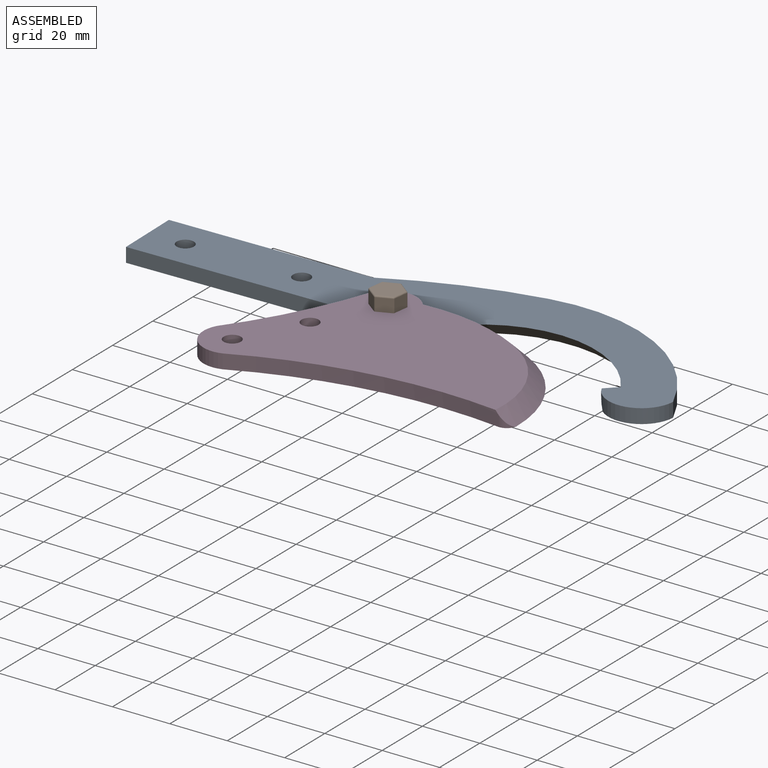
[diagram: assembled view]
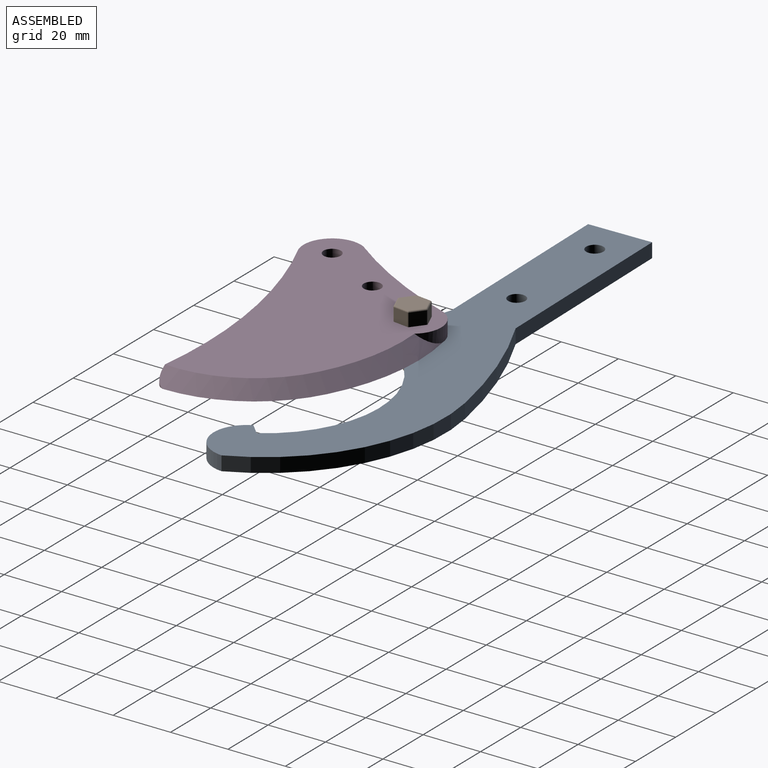
[diagram: assembled view, second angle]
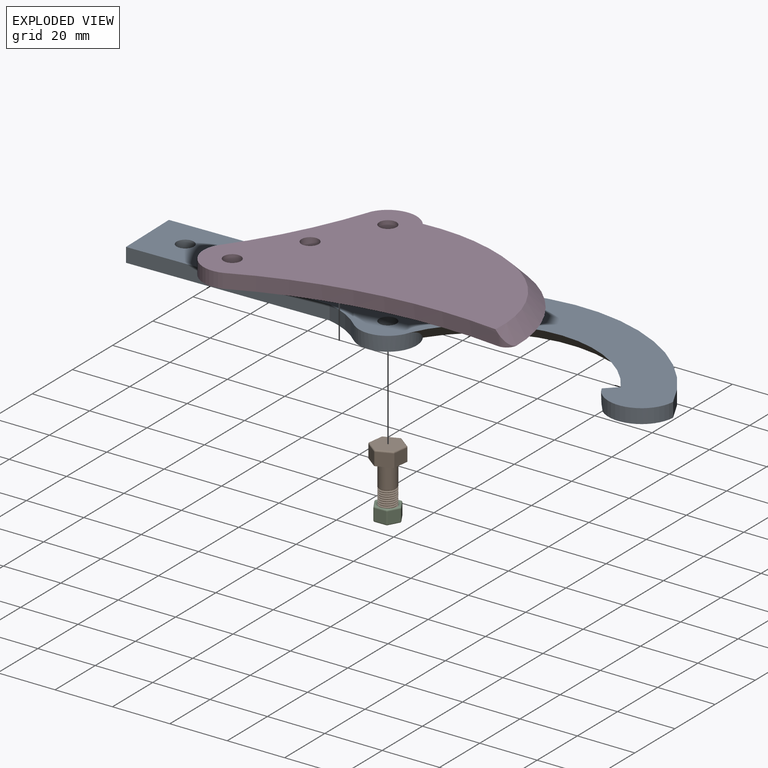
[diagram: exploded view]
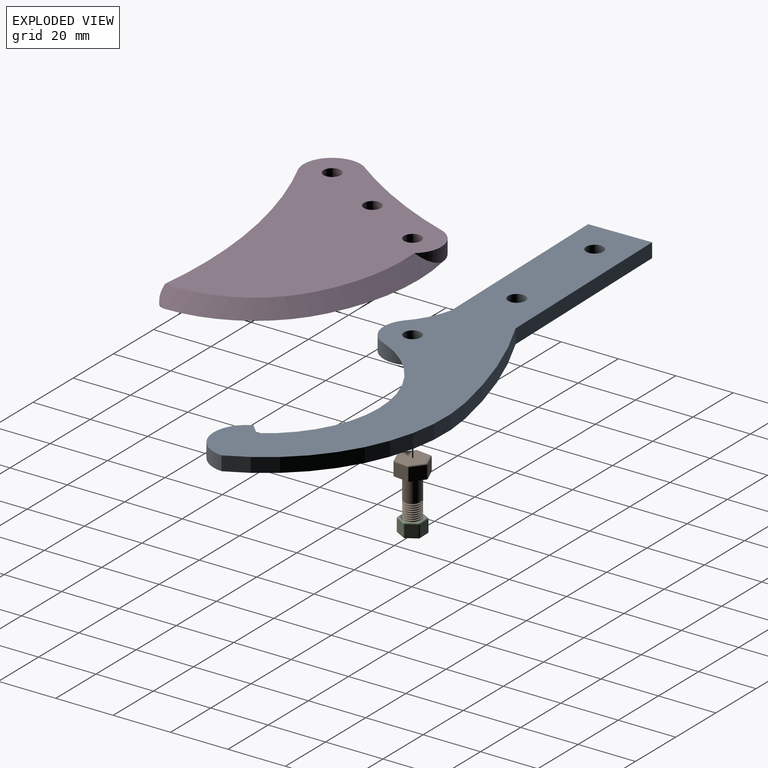
[diagram: exploded view, second angle]
ASSEMBLY  parts=4 mates=3
PART A: 15 faces, bbox 188.1x49.5x5.1 mm
  f0: cylinder r=11.54mm len=22mm, axis (0,0,-1), area 139mm2, adj f1,f11,f12,f14
  f1: cylinder r=62.7mm len=68.09mm, axis (0,0,-1), area 420.9mm2, adj f0,f2,f11,f12
  f2: cylinder r=175.93mm len=49.91mm, axis (0,0,-1), area 263.1mm2, adj f1,f3,f11,f12
  f3: plane 70x5mm, normal (0,1,0), area 350mm2, adj f2,f4,f11,f12
  f4: plane 22x5mm, normal (-1,0,0), area 110mm2, adj f3,f5,f11,f12
  f5: plane 70x5mm, normal (0,-1,0), area 350mm2, adj f4,f6,f11,f12
  f6: cylinder r=29.25mm len=13.41mm, axis (0,0,-1), area 77.8mm2, adj f5,f7,f11,f12
  f7: cylinder r=10mm len=16.59mm, axis (0,0,-1), area 125.2mm2, adj f6,f11,f12,f13
  f8: cylinder r=3mm len=6mm, axis (0,0,-1), area 94.2mm2, adj f11,f12
  f9: cylinder r=3mm len=6mm, axis (0,0,-1), area 94.2mm2, adj f11,f12
  f10: cylinder r=3mm len=6mm, axis (0,0,-1), area 94.2mm2, adj f11,f12
  f11: plane 188x49.41mm, normal (0,0,1), area 4442.4mm2, adj f0,f1,f2,f3,f4,f5,f6,f7
  f12: plane 188x49.41mm, normal (0,0,-1), area 3957.2mm2, adj f0,f1,f2,f3,f4,f5,f6,f7
  f13: cone r=40mm half-angle=45deg, axis (0,0,-1), area 630.3mm2, adj f7,f11,f12,f14
  f14: plane 10.27x7.86mm, normal (-0.49,0.51,-0.71), area 55.8mm2, adj f0,f11,f12,f13
PART B: 44 faces, bbox 11.4x10x21.2 mm
  f0: cone r=2.5mm half-angle=45deg, axis (0,0,1), area 5.8mm2, adj f1,f39,f41,f42
  f1: cone r=2.5mm half-angle=45deg, axis (0,0,1), area 1.1mm2, adj f0,f28,f41,f43
  f2: plane 4.5x4.5mm, normal (0.87,-0.5,0), area 23.4mm2, adj f9,f10,f13,f22
  f3: plane 4.5x4.5mm, normal (0.87,0.5,0), area 23.4mm2, adj f9,f13,f14,f18
  f4: plane 5.2x4.5mm, normal (0,1,0), area 23.4mm2, adj f9,f14,f15,f17
  f5: plane 4.5x4.5mm, normal (-0.87,0.5,0), area 23.4mm2, adj f9,f12,f15,f21
  f6: plane 4.5x4.5mm, normal (-0.87,-0.5,0), area 23.4mm2, adj f9,f11,f12,f25
  f7: plane 5.2x4.5mm, normal (0,-1,0), area 23.4mm2, adj f9,f10,f11,f26
  f8: plane 10.39x9mm, normal (0,0,1), area 70.1mm2, adj f17,f18,f21,f22,f25,f26
  f9: plane 11.39x10mm, normal (0,0,-1), area 58.2mm2, adj f2,f3,f4,f5,f6,f7,f10,f11
  f10: cylinder r=0.5mm len=4.5mm, axis (0,0,-1), area 2.4mm2, adj f2,f7,f9,f24
  f11: cylinder r=0.5mm len=4.5mm, axis (0,0,-1), area 2.4mm2, adj f6,f7,f9,f27
  f12: cylinder r=0.5mm len=4.5mm, axis (0,0,-1), area 2.4mm2, adj f5,f6,f9,f23
  f13: cylinder r=0.5mm len=4.5mm, axis (0,0,-1), area 2.4mm2, adj f2,f3,f9,f20
  f14: cylinder r=0.5mm len=4.5mm, axis (0,0,-1), area 2.4mm2, adj f3,f4,f9,f16
  f15: cylinder r=0.5mm len=4.5mm, axis (0,0,-1), area 2.4mm2, adj f4,f5,f9,f19
  f16: sphere r=0.5mm, area 0.3mm2, adj f14,f17,f18
  f17: cylinder r=0.5mm len=5.2mm, axis (1,0,0), area 4.1mm2, adj f4,f8,f16,f19
  f18: cylinder r=0.5mm len=4.75mm, axis (0.5,-0.87,0), area 4.1mm2, adj f3,f8,f16,f20
  f19: sphere r=0.5mm, area 0.3mm2, adj f15,f17,f21
  f20: sphere r=0.5mm, area 0.4mm2, adj f13,f18,f22
  f21: cylinder r=0.5mm len=4.75mm, axis (0.5,0.87,0), area 4.1mm2, adj f5,f8,f19,f23
  f22: cylinder r=0.5mm len=4.75mm, axis (-0.5,-0.87,0), area 4.1mm2, adj f2,f8,f20,f24
  f23: sphere r=0.5mm, area 0.4mm2, adj f12,f21,f25
  f24: sphere r=0.5mm, area 0.3mm2, adj f10,f22,f26
  f25: cylinder r=0.5mm len=4.75mm, axis (-0.5,0.87,0), area 4.1mm2, adj f6,f8,f23,f27
  f26: cylinder r=0.5mm len=5.2mm, axis (-1,0,0), area 4.1mm2, adj f7,f8,f24,f27
  f27: sphere r=0.5mm, area 0.3mm2, adj f11,f25,f26
  f28: cylinder r=3mm len=6mm, axis (0,0,1), area 1.6mm2, adj f1,f29,f41,f43
  f29: cylinder r=3mm len=6mm, axis (0,0,1), area 1.7mm2, adj f28,f30,f41,f43
  f30: cylinder r=3mm len=6mm, axis (0,0,1), area 1.6mm2, adj f29,f31,f41,f43
  f31: cylinder r=3mm len=6mm, axis (0,0,1), area 1.6mm2, adj f30,f32,f41,f43
  f32: cylinder r=3mm len=6mm, axis (0,0,1), area 1.6mm2, adj f31,f33,f41,f43
  f33: cylinder r=3mm len=6mm, axis (0,0,1), area 1.6mm2, adj f32,f34,f41,f43
  f34: cylinder r=3mm len=6mm, axis (0,0,1), area 1.6mm2, adj f33,f35,f41,f43
  f35: cylinder r=3mm len=6mm, axis (0,0,1), area 1.6mm2, adj f34,f36,f41,f43
  f36: cylinder r=3mm len=6mm, axis (0,0,1), area 1.6mm2, adj f35,f37,f41,f43
  f37: cylinder r=3mm len=6mm, axis (0,0,1), area 1.6mm2, adj f36,f38,f41,f43
  f38: cylinder r=3mm len=8.59mm, axis (0,0,1), area 155.3mm2, adj f9,f37,f40,f41,f43
  f39: plane 5x5mm, normal (0,0,-1), area 19.6mm2, adj f0
  f40: plane 0.61x0.34mm, normal (0.43,0.9,0), area 0.1mm2, adj f38,f41,f42,f43
  f41: bspline ~7.87x6.93mm, area 80.5mm2, adj f0,f1,f28,f29,f30,f31,f32,f33
  f42: cylinder r=2.62mm len=7.77mm, axis (0,0,1), area 16.5mm2, adj f0,f40,f41,f43
  f43: bspline ~7.99x6mm, area 84.8mm2, adj f1,f28,f29,f30,f31,f32,f33,f34
PART C: 57 faces, bbox 9.1x8x5 mm
  f0: plane 3.03x1.75mm, normal (0,0,1), area 0.7mm2, adj f33,f43,f50
  f1: plane 3.03x1.75mm, normal (0,0,1), area 0.7mm2, adj f24,f33,f50
  f2: plane 3.5x1.01mm, normal (0,0,1), area 0.7mm2, adj f24,f34,f50
  f3: plane 3.03x1.75mm, normal (0,0,1), area 0.7mm2, adj f34,f44,f50
  f4: plane 3.03x1.75mm, normal (0,0,1), area 0.7mm2, adj f44,f48,f50
  f5: plane 3.03x1.75mm, normal (0,0,-1), area 0.7mm2, adj f36,f37,f49
  f6: plane 3.03x1.75mm, normal (0,0,-1), area 0.7mm2, adj f26,f36,f49
  f7: plane 3.5x1.01mm, normal (0,0,-1), area 0.7mm2, adj f19,f26,f49
  f8: plane 3.03x1.75mm, normal (0,0,-1), area 0.7mm2, adj f19,f22,f49
  f9: plane 3.03x1.75mm, normal (0,0,-1), area 0.7mm2, adj f22,f31,f49
  f10: plane 3.5x1.01mm, normal (0,0,1), area 0.7mm2, adj f43,f48,f50
  f11: plane 3.5x1.01mm, normal (0,0,-1), area 0.7mm2, adj f31,f37,f49
  f12: plane 4x3.5mm, normal (0.87,-0.5,0), area 16.2mm2, adj f31,f32,f42,f43
  f13: plane 4x3.5mm, normal (0.87,0.5,0), area 16.2mm2, adj f37,f42,f45,f48
  f14: plane 4.04x4mm, normal (0,1,0), area 16.2mm2, adj f35,f36,f44,f45
  f15: plane 4x3.5mm, normal (-0.87,0.5,0), area 16.2mm2, adj f25,f26,f34,f35
  f16: plane 4x3.5mm, normal (-0.87,-0.5,0), area 16.2mm2, adj f19,f23,f24,f25
  f17: plane 4.04x4mm, normal (0,-1,0), area 16.2mm2, adj f22,f23,f32,f33
  f18: cylinder r=3mm len=6mm, axis (0,0,-1), area 18.1mm2, adj f49,f50,f51,f52,f53,f55
  f19: cylinder r=0.5mm len=3.75mm, axis (0.5,-0.87,0), area 3.2mm2, adj f7,f8,f16,f20,f21
  f20: sphere r=0.5mm, area 0.3mm2, adj f19,f22,f23
  f21: sphere r=0.5mm, area 0.3mm2, adj f19,f25,f26
  f22: cylinder r=0.5mm len=4.04mm, axis (1,0,0), area 3.2mm2, adj f8,f9,f17,f20,f27
  f23: cylinder r=0.5mm len=4mm, axis (0,0,-1), area 2.1mm2, adj f16,f17,f20,f28
  f24: cylinder r=0.5mm len=3.75mm, axis (-0.5,0.87,0), area 3.2mm2, adj f1,f2,f16,f28,f29
  f25: cylinder r=0.5mm len=4mm, axis (0,0,-1), area 2.1mm2, adj f15,f16,f21,f29
  f26: cylinder r=0.5mm len=3.75mm, axis (-0.5,-0.87,0), area 3.2mm2, adj f6,f7,f15,f21,f30
  f27: sphere r=0.5mm, area 0.3mm2, adj f22,f31,f32
  f28: sphere r=0.5mm, area 0.3mm2, adj f23,f24,f33
  f29: sphere r=0.5mm, area 0.3mm2, adj f24,f25,f34
  f30: sphere r=0.5mm, area 0.3mm2, adj f26,f35,f36
  f31: cylinder r=0.5mm len=3.75mm, axis (0.5,0.87,0), area 3.2mm2, adj f9,f11,f12,f27,f38
  f32: cylinder r=0.5mm len=4mm, axis (0,0,-1), area 2.1mm2, adj f12,f17,f27,f39
  f33: cylinder r=0.5mm len=4.04mm, axis (-1,0,0), area 3.2mm2, adj f0,f1,f17,f28,f39
  f34: cylinder r=0.5mm len=3.75mm, axis (0.5,0.87,0), area 3.2mm2, adj f2,f3,f15,f29,f40
  f35: cylinder r=0.5mm len=4mm, axis (0,0,-1), area 2.1mm2, adj f14,f15,f30,f40
  f36: cylinder r=0.5mm len=4.04mm, axis (-1,0,0), area 3.2mm2, adj f5,f6,f14,f30,f41
  f37: cylinder r=0.5mm len=3.75mm, axis (-0.5,0.87,0), area 3.2mm2, adj f5,f11,f13,f38,f41
  f38: sphere r=0.5mm, area 0.3mm2, adj f31,f37,f42
  f39: sphere r=0.5mm, area 0.3mm2, adj f32,f33,f43
  f40: sphere r=0.5mm, area 0.3mm2, adj f34,f35,f44
  f41: sphere r=0.5mm, area 0.3mm2, adj f36,f37,f45
  f42: cylinder r=0.5mm len=4mm, axis (0,0,-1), area 2.1mm2, adj f12,f13,f38,f46
  f43: cylinder r=0.5mm len=3.75mm, axis (-0.5,-0.87,0), area 3.2mm2, adj f0,f10,f12,f39,f46
  f44: cylinder r=0.5mm len=4.04mm, axis (1,0,0), area 3.2mm2, adj f3,f4,f14,f40,f47
  f45: cylinder r=0.5mm len=4mm, axis (0,0,-1), area 2.1mm2, adj f13,f14,f41,f47
  f46: sphere r=0.5mm, area 0.3mm2, adj f42,f43,f48
  f47: sphere r=0.5mm, area 0.3mm2, adj f44,f45,f48
  f48: cylinder r=0.5mm len=3.75mm, axis (0.5,-0.87,0), area 3.2mm2, adj f4,f10,f13,f46,f47
  f49: cone r=3.5mm half-angle=45deg, axis (0,0,-1), area 14.4mm2, adj f5,f6,f7,f8,f9,f11,f18
  f50: cone r=3mm half-angle=45deg, axis (0,0,1), area 14.4mm2, adj f0,f1,f2,f3,f4,f10,f18,f56
  f51: plane 0.61x0.38mm, normal (0,-1,0), area 0.1mm2, adj f18,f53,f54,f55
  f52: plane 0.61x0.38mm, normal (0,1,0), area 0.1mm2, adj f18,f53,f54,f55,f56
  f53: bspline ~6.93x6mm, area 38.6mm2, adj f18,f51,f52,f54
  f54: cylinder r=2.62mm len=5.24mm, axis (0,0,1), area 14.4mm2, adj f51,f52,f53,f55
  f55: bspline ~6.93x6mm, area 38.6mm2, adj f18,f51,f52,f54,f56
  f56: cylinder r=3mm len=2.53mm, axis (0,0,-1), area 0.2mm2, adj f50,f52,f55
PART D: 12 faces, bbox 91.5x84.4x5 mm
  f0: cylinder r=10mm len=14.13mm, axis (0,0,-1), area 81.1mm2, adj f1,f8,f9,f10
  f1: cylinder r=163.3mm len=50mm, axis (0,0,-1), area 251mm2, adj f0,f2,f8,f9
  f2: cylinder r=10mm len=17.33mm, axis (0,0,-1), area 119.7mm2, adj f1,f3,f8,f9
  f3: cylinder r=159.52mm len=70.47mm, axis (0,0,-1), area 443mm2, adj f2,f6,f8,f9,f11
  f4: cylinder r=3mm len=6mm, axis (0,0,-1), area 94.2mm2, adj f8,f9
  f5: cylinder r=3mm len=6mm, axis (0,0,-1), area 94.2mm2, adj f8,f9
  f6: cylinder r=3.76mm len=4.84mm, axis (0,0,-1), area 9.3mm2, adj f3,f9,f11
  f7: cylinder r=3mm len=6mm, axis (0,0,-1), area 94.2mm2, adj f8,f9
  f8: plane 86.9x79.39mm, normal (0,0,1), area 3830.6mm2, adj f0,f1,f2,f3,f4,f5,f7,f10
  f9: plane 90.24x84.39mm, normal (0,0,-1), area 4287mm2, adj f0,f1,f2,f3,f4,f5,f6,f7
  f10: cone r=71.33mm half-angle=45deg, axis (0,0,-1), area 297mm2, adj f0,f8,f9,f11
  f11: cone r=45mm half-angle=45deg, axis (0,0,-1), area 348.5mm2, adj f3,f6,f8,f9,f10
PLACE A rot(axis=(0,0,1),1.2deg) t=(5.23,3.45,-4.38)mm fixed
PLACE B rot(axis=(0,0,-1),37.5deg) t=(95.66,-16.7,5.62)mm
PLACE C rot(axis=(0,0,1),1.2deg) t=(95.66,-16.7,-8.88)mm
PLACE D rot(axis=(0,0,-1),27.7deg) t=(95.66,-16.7,0.62)mm
MATE planar C.f18 <-> A.f7  axis (0,0,1) through (95.66,-16.7,-4.38)mm
MATE planar B.f0 <-> D.f0  axis (0,0,1) through (95.66,-16.7,5.62)mm
MATE revolute A.f7 <-> D.f0  axis (0,0,1) through (95.66,-16.7,0.62)mm
